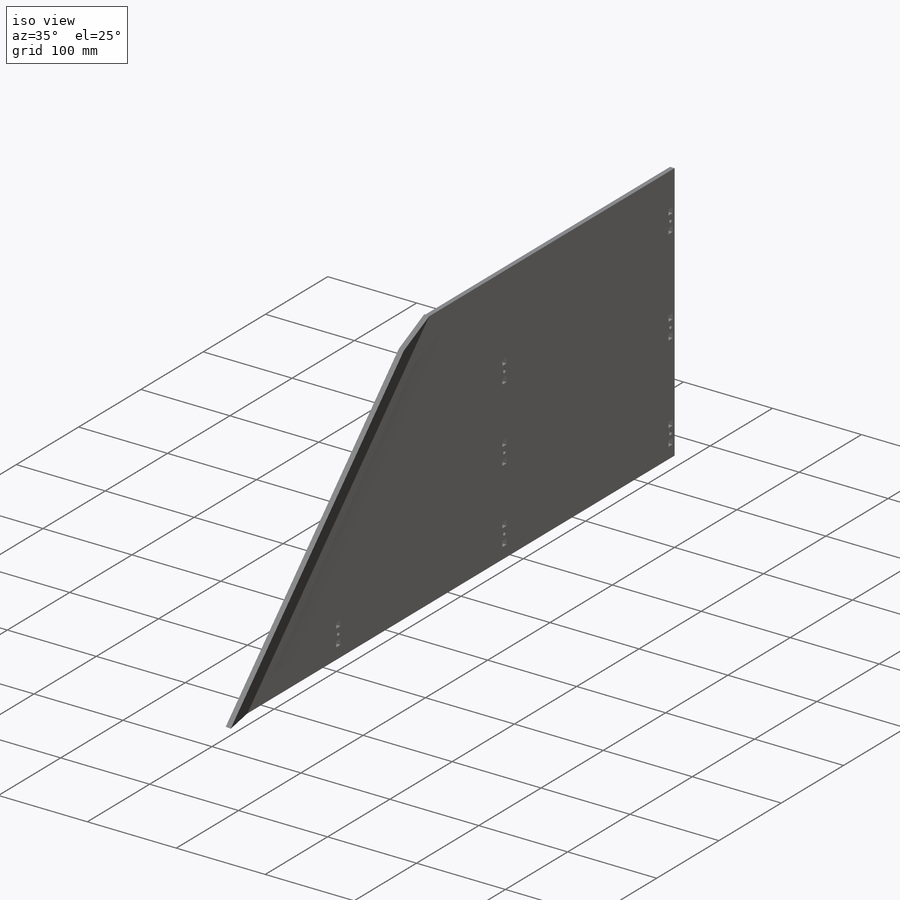
[diagram: iso view]
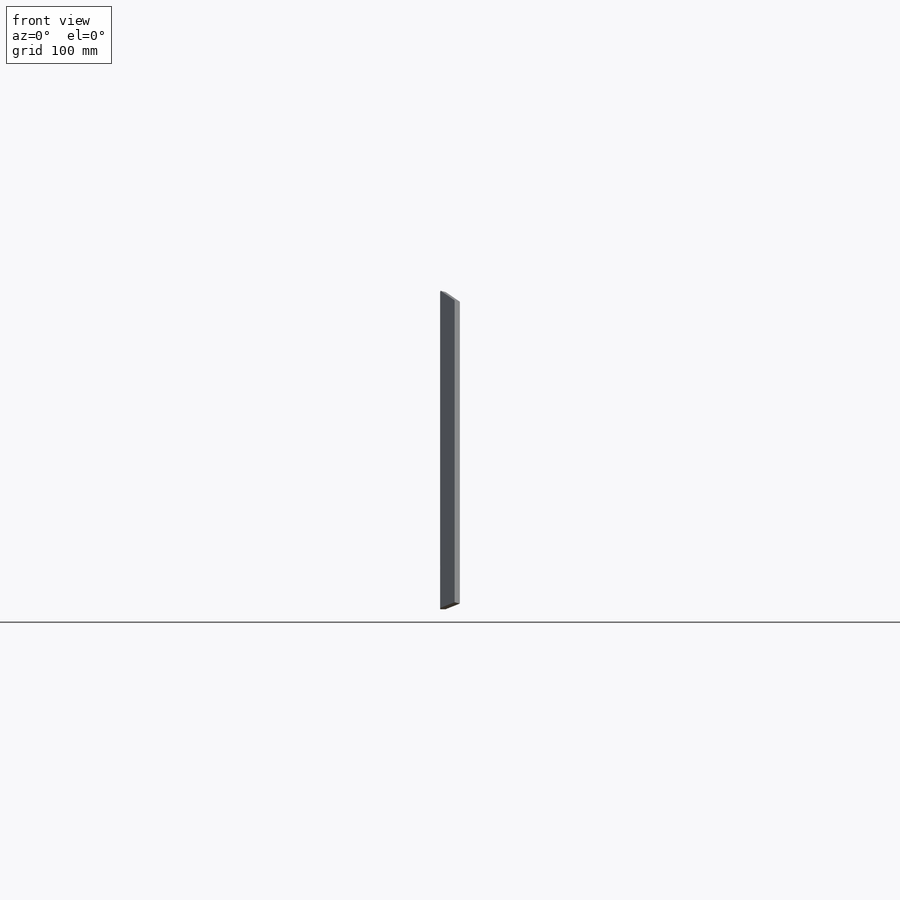
[diagram: front view]
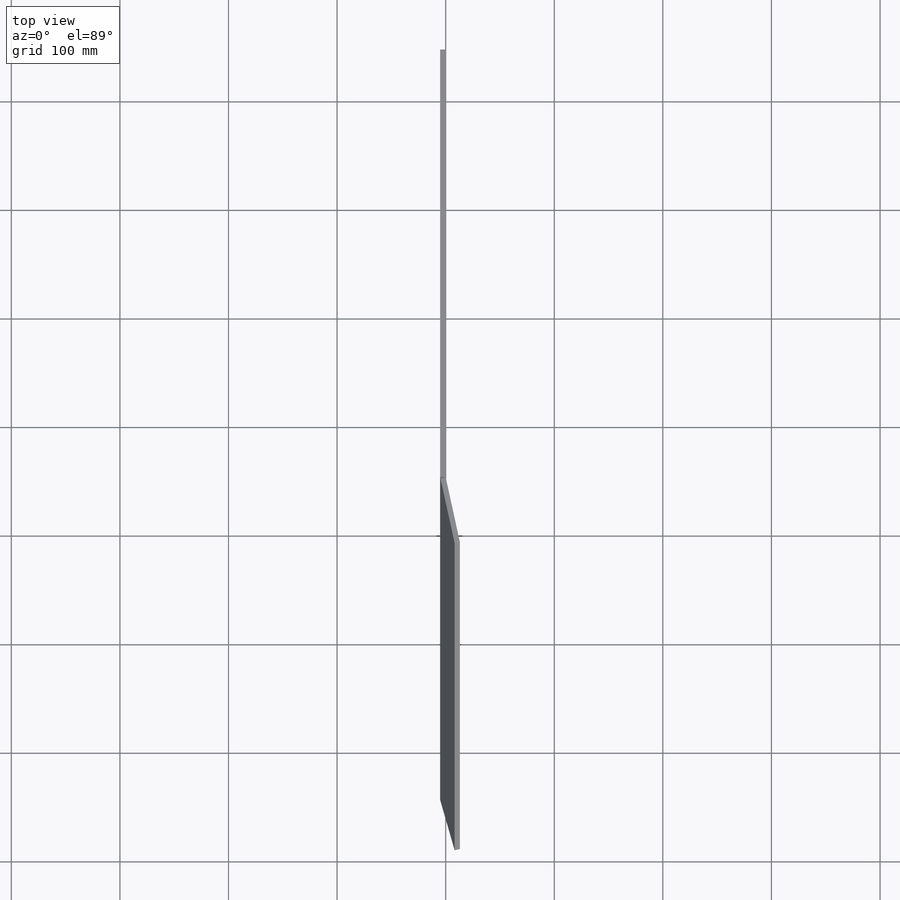
[diagram: top view]
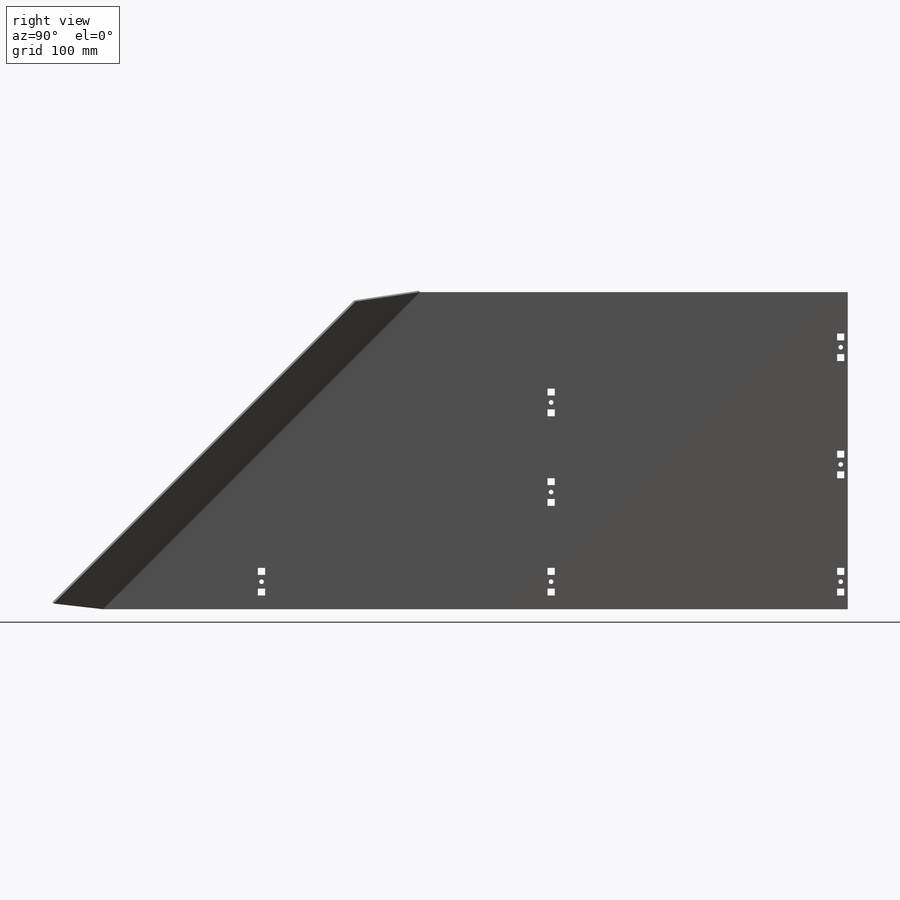
[diagram: right view]
SOLIDWORKS PART (.sldprt)
format: sldprt  version: not decoded by parser v0  size: 1,409,024 bytes
history: native  units: mm
features: sketch x15, sheet_metal_op x5, hole x4, material x1, cut_extrude x1 + 3 further entries (+12 scaffold rows collapsed; 4 parser-record rows omitted)
feature tree (45):
  scaffold x12  (default folders/planes/origin — collapsed)
  material  "Delrin 2700 NC010, Low Viscosity Acetal Copolymer (SS)"
  sketch  "Sketch1"  dims[c1.D1=914.4mm c1.D2=355.6mm c1.D3=~17.921975mm c2.D3=~146.309932deg c3.D3=~2617.993878mm c3.D4=254.0mm c3.D5=304.8mm c3.D6=101.6mm c3.D7=25.4mm c3.D8=914.4mm c4.D7=25.4mm c4.D8=~137.521024mm c4.D1=914.4mm c4.D9=~294.278976mm c5.D1=355.6mm c5.D2=393.7mm c5.D9=~1001.121024mm c5.D3=~785.398163mm c6.D1=~785.398163mm c6.D3=25.4mm c7.D1=~785.398163mm c7.D3=304.8mm c7.D4=4.7625mm c7.D5=12.7mm c7.D6=330.2mm c7.D7=254.0mm c7.D8=79.375mm c7.D9=50.8mm c8.D1=0.7366mm c8.D2=0.5 c8.D3=0.0deg c8.D6=~28.64789deg]
  sheet_metal_op  "Base-Flange1"
  sketch  "Sketch8"  dims[c1.D1=~392.699082mm c1.D2=38.1mm c2.D1=38.1mm c2.D2=~87.266463mm c2.D3=~174.532925mm c3.D1=0.7366mm c3.D2=~28.64789deg c3.D3=0.0deg c3.D4=~349.06585mm c3.D5=1.0 c3.D8=~0.136436deg c3.D9=~0.136436deg c4.D1=0.7366mm c4.D2=~28.64789deg c4.D3=0.0deg c4.D6=10.0mm c4.D7=38.1mm]
  sketch  "Sketch9"  dims[c1.D1=4.3053mm c1.D2=6.35mm c1.D3=6.604mm c1.D4=12.7mm c1.BOLT_HOLE-2=65536.0 c1.BOLT_HOLE-3=65536.0 c1.BOLT_HOLE-4=65536.0 c1.BOLT_HOLE-5=65536.0 c1.BOLT_HOLE-6=65536.0 c1.BOLT_HOLE-7=65536.0 c2.D1=12.7mm c2.D2=3.175mm c2.D3=3.175mm c2.D4=266.7mm c2.D5=266.7mm c3.D3=241.3mm c3.D6=38.1mm c3.D7=190.5mm c3.D5=266.7mm]
  cut_extrude  "Cut-Extrude1"  [1 undecoded]
  hole  "CSK for #8 Flat Head Socket Cap Screw1"  Diameter=4.3053mm Depth=18.110967mm
  sketch  "Sketch11"
  sketch  "Sketch10"  dims[hole-wizard template sketch: 40 standard entries collapsed; hole parameters kept: c6.Thru Hole Dia.=4.3053mm c6.Thru Hole Depth=~18.110967mm c6.Near C'Sink Dia.=9.1186mm c6.Near C'Sink Angle=~1431.169987mm]  [1 undecoded]
  sketch  "Bend-Lines1"
  sketch  "Bounding-Box1"  dims[D1=0.0508mm]
  sheet_metal_op  "Sheet-Metal(3)"
  "Flat-Pattern(3)"
  sketch  "Bend-Lines2"
  sketch  "Bounding-Box2"
  parser-record x4  (decoder bookkeeping rows leaked as tree rows — omitted from the tree; the rows remain in map.json)
  hole  "Sheet-Metal(4)"  Diameter=0.7366mm
  sheet_metal_op  "Flat-Pattern(3)"
  sketch  "Bend-Lines2"
  sketch  "Bounding-Box2"
  hole  "Sheet-Metal(5)"  Diameter=0.7366mm
  sheet_metal_op  "Flat-Pattern(3)"
  sketch  "Bend-Lines2"
  sketch  "Bounding-Box2"
  "Flatten-<EdgeBend1>1"
  hole  "Sheet-Metal(6)"  Diameter=0.7366mm
  sheet_metal_op  "Flat-Pattern(3)"
  sketch  "Bend-Lines2"
  sketch  "Bounding-Box2"
  "Flatten-<EdgeBend1>1"
decode coverage: 9 of 25 modeling features carry decoded parameters; 3 rows unclassified (native names shown)
note: ~ marks probable driven/reference dimensions
note: 1 parameter value undecoded
note: suppression state not decoded; provenance and decode notes live in map.json
note: 1 required parameter value undecoded (feature->parameter linkage not recoverable at this tier; creation-order binding heuristic only, values carry confidence <= 0.55)
